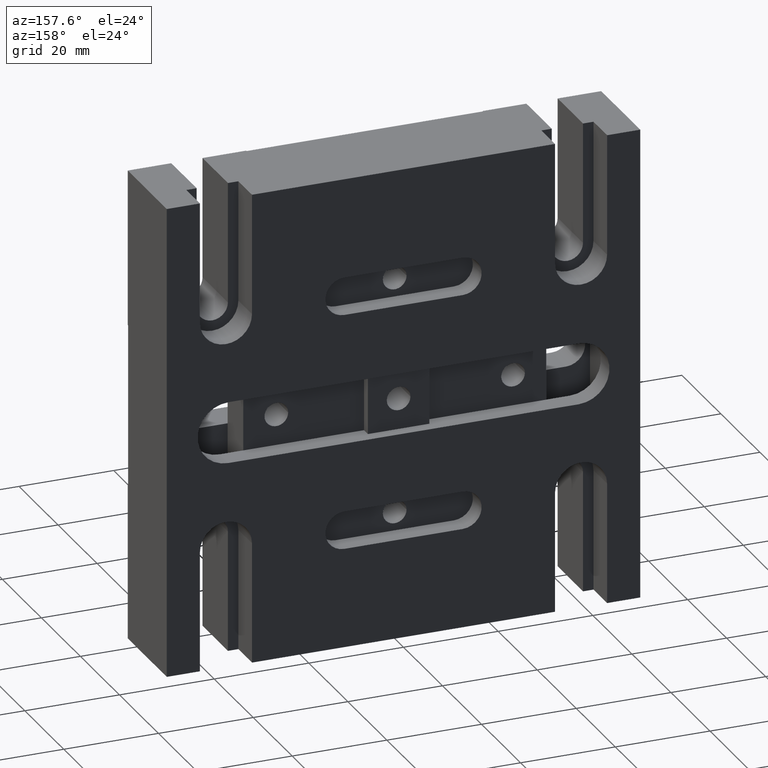
[diagram: clean part render]
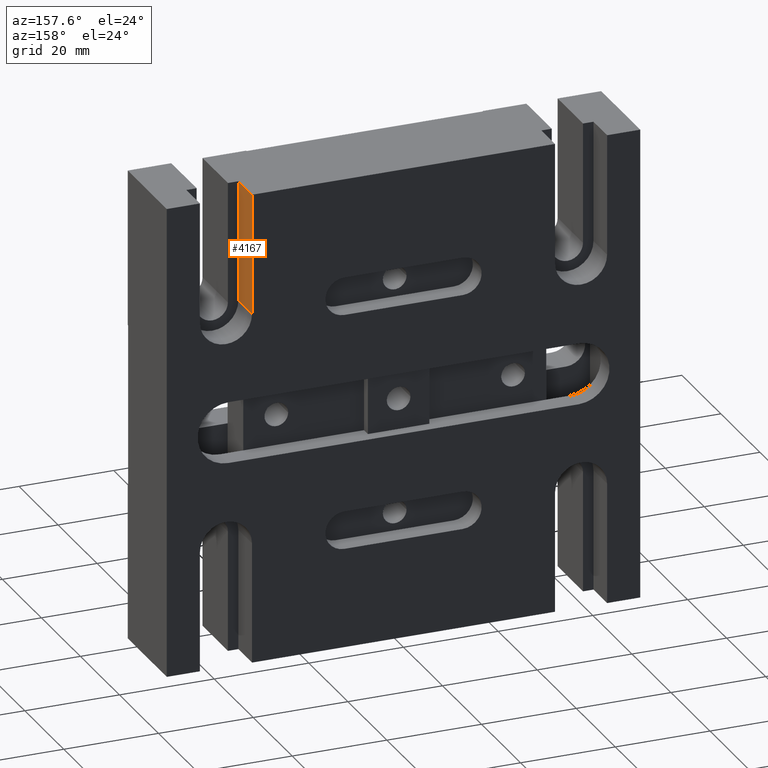
[diagram: same view with one face highlighted and labeled with its STEP entity id]
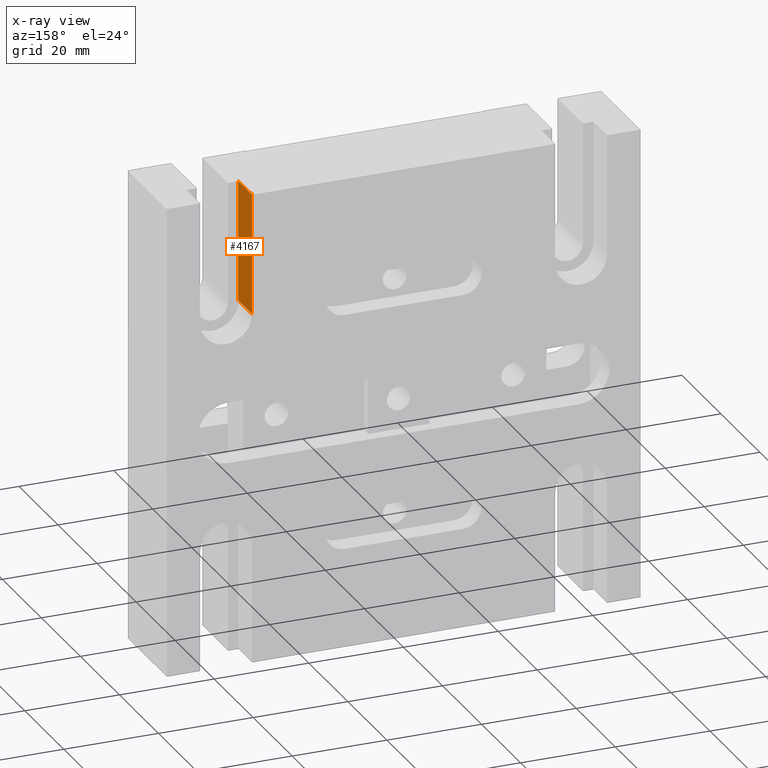
[diagram: x-ray of the same camera — body ghosted, the highlighted face saturated]
A machine part, auxiliary view. The second image highlights one B-rep face of the part: STEP entity #4167.
The next image is the same camera in x-ray: the body ghosted, the highlighted face saturated — about 0% of this face is hidden behind the body in this view.
In plain terms, the highlighted planar face has unit normal (-1, 0, 0).
Its self-contained STEP definition (entity closure, byte-faithful):
#1 = CARTESIAN_POINT ( 'NONE',  ( 32.00000000000001400, -14.77138815399762700, 50.00000000000000000 ) ) ;
#189 = ORIENTED_EDGE ( 'NONE', *, *, #1672, .T. ) ;
#423 = DIRECTION ( 'NONE',  ( 2.218897729836139900E-047, 1.000000000000000000, -2.965575351820868600E-032 ) ) ;
#728 = LINE ( 'NONE', #4278, #1687 ) ;
#892 = ORIENTED_EDGE ( 'NONE', *, *, #5300, .F. ) ;
#1177 = VERTEX_POINT ( 'NONE', #3230 ) ;
#1362 = DIRECTION ( 'NONE',  ( -1.000000000000000000, 2.993620226300573800E-047, 2.612385134603822900E-016 ) ) ;
#1427 = EDGE_CURVE ( 'NONE', #2333, #2563, #728, .T. ) ;
#1497 = VECTOR ( 'NONE', #5727, 1000.000000000000000 ) ;
#1672 = EDGE_CURVE ( 'NONE', #1177, #2333, #5658, .T. ) ;
#1687 = VECTOR ( 'NONE', #2924, 1000.000000000000000 ) ;
#1798 = CARTESIAN_POINT ( 'NONE',  ( 32.00000000000001400, 13.00000000000000200, 50.00000000000000000 ) ) ;
#1804 = CARTESIAN_POINT ( 'NONE',  ( 32.00000000000000700, 20.00000000000000000, 24.50000000000000000 ) ) ;
#1809 = DIRECTION ( 'NONE',  ( -2.218897729836139900E-047, -1.000000000000000000, 2.965575351820868600E-032 ) ) ;
#2102 = ORIENTED_EDGE ( 'NONE', *, *, #1427, .T. ) ;
#2181 = CARTESIAN_POINT ( 'NONE',  ( 32.00000000000001400, -14.77138815399762700, 50.00000000000000000 ) ) ;
#2333 = VERTEX_POINT ( 'NONE', #1804 ) ;
#2336 = VECTOR ( 'NONE', #5294, 1000.000000000000000 ) ;
#2352 = FACE_OUTER_BOUND ( 'NONE', #4499, .T. ) ;
#2563 = VERTEX_POINT ( 'NONE', #2873 ) ;
#2724 = VERTEX_POINT ( 'NONE', #3173 ) ;
#2873 = CARTESIAN_POINT ( 'NONE',  ( 32.00000000000001400, 20.00000000000000000, 50.00000000000000000 ) ) ;
#2924 = DIRECTION ( 'NONE',  ( 2.612385134603822900E-016, 2.730512921981286600E-032, 1.000000000000000000 ) ) ;
#3114 = CARTESIAN_POINT ( 'NONE',  ( 32.00000000000000700, -14.77138815399762700, 24.50000000000000000 ) ) ;
#3173 = CARTESIAN_POINT ( 'NONE',  ( 32.00000000000001400, 13.00000000000000200, 50.00000000000000000 ) ) ;
#3230 = CARTESIAN_POINT ( 'NONE',  ( 32.00000000000000700, 13.00000000000000200, 24.50000000000000000 ) ) ;
#3412 = LINE ( 'NONE', #1798, #1497 ) ;
#3540 = LINE ( 'NONE', #2181, #2336 ) ;
#4128 = ORIENTED_EDGE ( 'NONE', *, *, #5690, .F. ) ;
#4143 = VECTOR ( 'NONE', #423, 1000.000000000000000 ) ;
#4167 = ADVANCED_FACE ( 'NONE', ( #2352 ), #5342, .F. ) ;
#4278 = CARTESIAN_POINT ( 'NONE',  ( 32.00000000000001400, 20.00000000000000000, 50.00000000000000000 ) ) ;
#4499 = EDGE_LOOP ( 'NONE', ( #189, #2102, #4128, #892 ) ) ;
#5294 = DIRECTION ( 'NONE',  ( 2.218897729836139900E-047, 1.000000000000000000, -2.965575351820868600E-032 ) ) ;
#5300 = EDGE_CURVE ( 'NONE', #1177, #2724, #3412, .T. ) ;
#5342 = PLANE ( 'NONE',  #5378 ) ;
#5378 = AXIS2_PLACEMENT_3D ( 'NONE', #1, #1362, #1809 ) ;
#5658 = LINE ( 'NONE', #3114, #4143 ) ;
#5690 = EDGE_CURVE ( 'NONE', #2724, #2563, #3540, .T. ) ;
#5727 = DIRECTION ( 'NONE',  ( 2.612385134603822900E-016, 2.730512921981286600E-032, 1.000000000000000000 ) ) ;